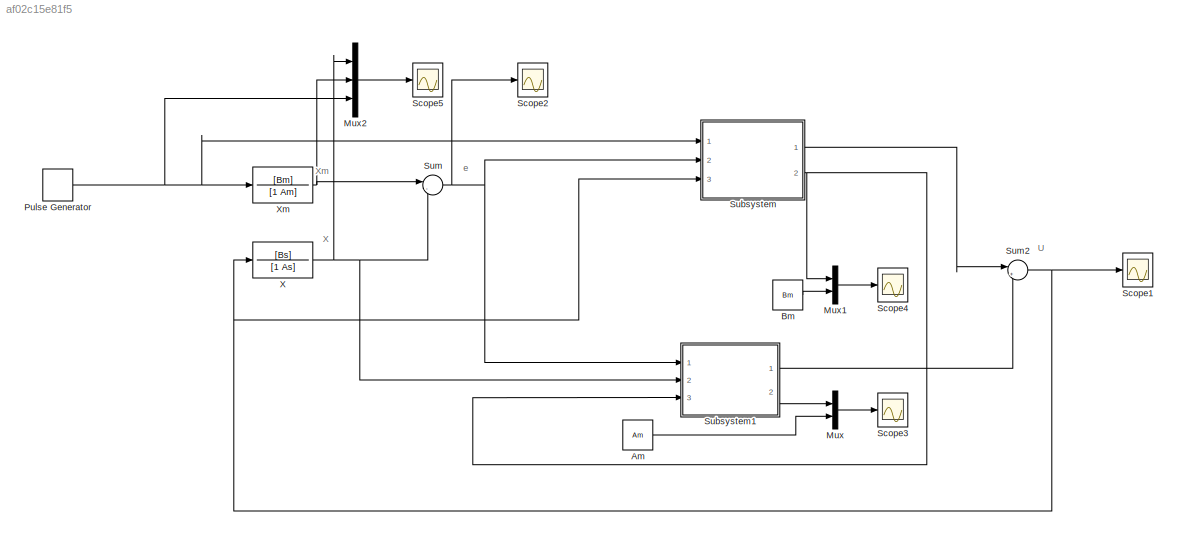
MODEL slx_af02c15e81f5
KIND model
CONFIG AbsTol = auto
CONFIG FixedStep = auto
CONFIG MaxStep = auto
CONFIG MinStep = auto
CONFIG RelTol = 1e-3
CONFIG SampleTimeConstraint = Unconstrained
CONFIG Solver = ode45
CONFIG SolverMode = SingleTasking
CONFIG SolverName = ode45
CONFIG StartTime = 0.0
CONFIG StopTime = 35
BLOCK [Constant] Am 
  Value = Am
BLOCK [Constant] Bm
  Value = Bm
BLOCK [Mux] Mux
  DisplayOption = bar
  Inputs = 2
  Ports = [2, 1]
BLOCK [Mux] Mux1
  DisplayOption = bar
  Inputs = 2
  Ports = [2, 1]
BLOCK [Mux] Mux2
  DisplayOption = bar
  Inputs = 3
  Ports = [3, 1]
BLOCK [DiscretePulseGenerator] Pulse Generator
  Period = 20
  Ports = [0, 1]
  PulseType = Time based
  PulseWidth = 50
BLOCK [Scope] Scope1
  Ports = [1]
  ScopeSpecificationString = Simulink.scopes.TimeScopeBlockCfg('CurrentConfiguration', extmgr.ConfigurationSet(extmgr.Configuration('Core','General UI',true,'FigureColor',[1 1 1]),extmgr.Configuration('Core','Source UI',true),extmgr.Configuration('Sources','WiredSimulink',true,'DataLoggingVariableName','ScopeData1','DataLoggingSaveFormat','StructureWithTime','DataLoggingDecimation','1','DataLoggingDecimateData',true),extmgr.C...<+2847ch>
BLOCK [Scope] Scope2
  Ports = [1]
  ScopeSpecificationString = Simulink.scopes.TimeScopeBlockCfg('CurrentConfiguration', extmgr.ConfigurationSet(extmgr.Configuration('Core','General UI',true,'FigureColor',[1 1 1]),extmgr.Configuration('Core','Source UI',true),extmgr.Configuration('Sources','WiredSimulink',true,'DataLoggingSaveFormat','StructureWithTime','DataLoggingDecimation','1','DataLoggingDecimateData',true),extmgr.Configuration('Visuals','Time Domain',tr...<+2807ch>
BLOCK [Scope] Scope3
  Ports = [1]
  ScopeSpecificationString = C++SS(StrPVP('Location','[548, 60, 1356, 480]'),StrPVP('Open','off'),StrPVP('ZoomMode','yonly'),MxPVP('AxesTitles',24,'struct(''axes1'',''%<SignalLabel>'')'),MxPVP('ScopeGraphics',28,'struct(''FigureColor'',''[1 1 1]'',''AxesColor'',''[1 1 1]'',''AxesTickColor'',''[0 0 0]'',''LineColors'',''[0 0 1;1 0 1;0 1 1;1 0 0;0 1 0;0 0 1]'',''LineStyles'',''-|-|-|-|-|-'',''LineWidths'',''[1 0.5 0.5 0.5 0.5 0...<+331ch>
BLOCK [Scope] Scope4
  Ports = [1]
  ScopeSpecificationString = Simulink.scopes.TimeScopeBlockCfg('CurrentConfiguration', extmgr.ConfigurationSet(extmgr.Configuration('Core','General UI',true,'FigureColor',[1 1 1]),extmgr.Configuration('Core','Source UI',true),extmgr.Configuration('Sources','WiredSimulink',true,'DataLoggingVariableName','ScopeData3','DataLoggingSaveFormat','StructureWithTime','DataLoggingDecimation','1','DataLoggingDecimateData',true),extmgr.C...<+2788ch>
BLOCK [Scope] Scope5
  Ports = [1]
  ScopeSpecificationString = Simulink.scopes.TimeScopeBlockCfg('CurrentConfiguration', extmgr.ConfigurationSet(extmgr.Configuration('Core','General UI',true,'FigureColor',[1 1 1]),extmgr.Configuration('Core','Source UI',true),extmgr.Configuration('Sources','WiredSimulink',true,'DataLoggingVariableName','ScopeData4','DataLoggingSaveFormat','StructureWithTime','DataLoggingDecimation','1','DataLoggingDecimateData',true),extmgr.C...<+2939ch>
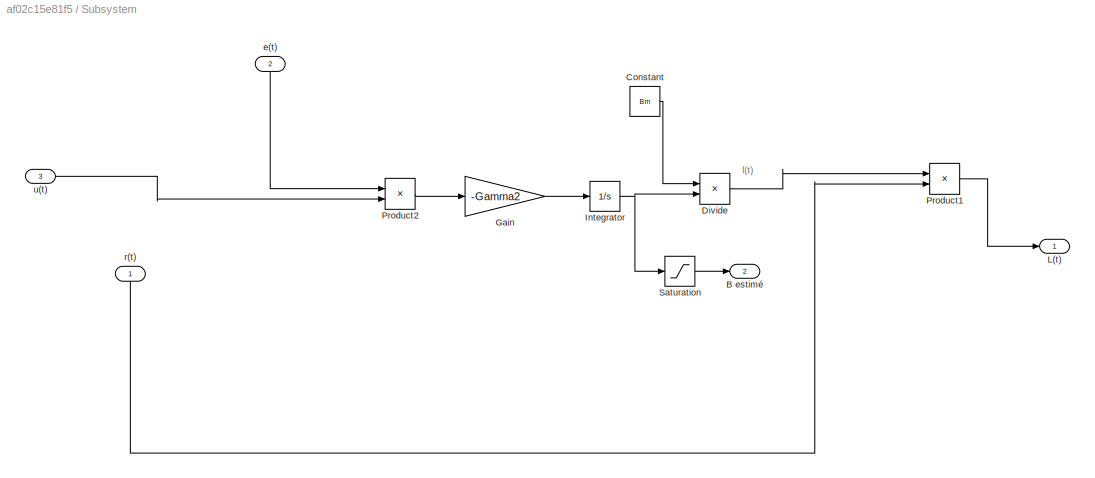
BLOCK [SubSystem] Subsystem
  Ports = [3, 2]
  RequestExecContextInheritance = off
  Variant = off
BLOCK [Outport] Subsystem/B estimé
  IconDisplay = Port number
  Port = 2
BLOCK [Constant] Subsystem/Constant
  Value = Bm
BLOCK [Product] Subsystem/Divide
  InputSameDT = off
  Inputs = */
  OutDataTypeStr = Inherit: Inherit via internal rule
  Ports = [2, 1]
  RndMeth = Floor
  SaturateOnIntegerOverflow = off
BLOCK [Gain] Subsystem/Gain
  Gain = -Gamma2
  OutDataTypeStr = Inherit: Inherit via internal rule
  ParamDataTypeStr = Inherit: Inherit via internal rule
  SaturateOnIntegerOverflow = off
BLOCK [Integrator] Subsystem/Integrator
  InitialCondition = 5
  Ports = [1, 1]
BLOCK [Outport] Subsystem/L(t)
  IconDisplay = Port number
BLOCK [Product] Subsystem/Product1
  InputSameDT = off
  OutDataTypeStr = Inherit: Inherit via internal rule
  Ports = [2, 1]
  RndMeth = Floor
  SaturateOnIntegerOverflow = off
BLOCK [Product] Subsystem/Product2
  InputSameDT = off
  OutDataTypeStr = Inherit: Inherit via internal rule
  Ports = [2, 1]
  RndMeth = Floor
  SaturateOnIntegerOverflow = off
BLOCK [Saturate] Subsystem/Saturation
  InputPortMap = u0
  LowerLimit = 0.1
  Ports = [1, 1]
  UpperLimit = inf
BLOCK [Inport] Subsystem/e(t)
  IconDisplay = Port number
  Port = 2
BLOCK [Inport] Subsystem/r(t)
  IconDisplay = Port number
BLOCK [Inport] Subsystem/u(t)
  IconDisplay = Port number
  Port = 3
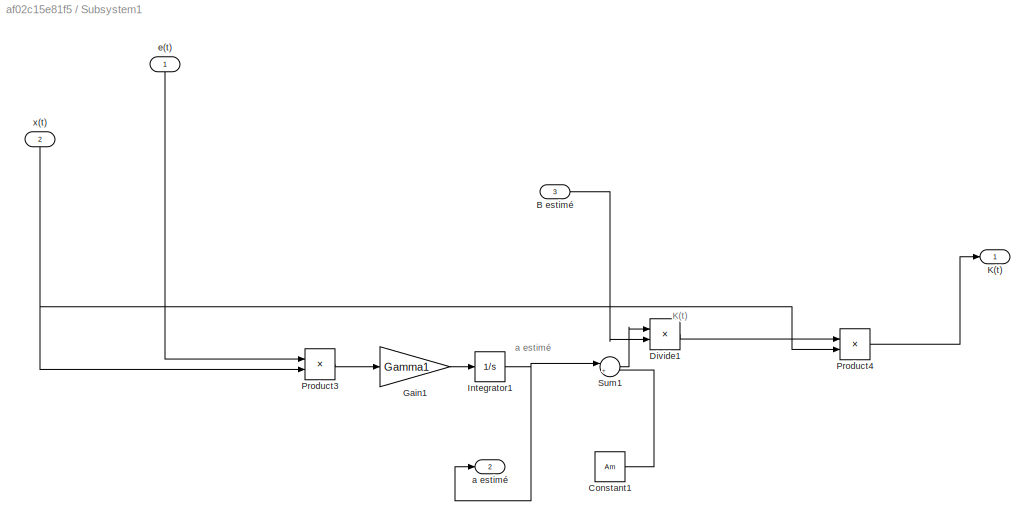
BLOCK [SubSystem] Subsystem1
  Ports = [3, 2]
  RequestExecContextInheritance = off
  Variant = off
BLOCK [Inport] Subsystem1/B estimé
  IconDisplay = Port number
  Port = 3
BLOCK [Constant] Subsystem1/Constant1
  Value = Am
BLOCK [Product] Subsystem1/Divide1
  InputSameDT = off
  Inputs = */
  OutDataTypeStr = Inherit: Inherit via internal rule
  Ports = [2, 1]
  RndMeth = Floor
  SaturateOnIntegerOverflow = off
BLOCK [Gain] Subsystem1/Gain1
  Gain = Gamma1
  OutDataTypeStr = Inherit: Inherit via internal rule
  ParamDataTypeStr = Inherit: Inherit via internal rule
  SaturateOnIntegerOverflow = off
BLOCK [Integrator] Subsystem1/Integrator1
  InitialCondition = 5
  Ports = [1, 1]
BLOCK [Outport] Subsystem1/K(t)
  IconDisplay = Port number
BLOCK [Product] Subsystem1/Product3
  InputSameDT = off
  OutDataTypeStr = Inherit: Inherit via internal rule
  Ports = [2, 1]
  RndMeth = Floor
  SaturateOnIntegerOverflow = off
BLOCK [Product] Subsystem1/Product4
  InputSameDT = off
  OutDataTypeStr = Inherit: Inherit via internal rule
  Ports = [2, 1]
  RndMeth = Floor
  SaturateOnIntegerOverflow = off
BLOCK [Sum] Subsystem1/Sum1
  IconShape = round
  InputSameDT = off
  Inputs = |++
  OutDataTypeStr = Inherit: Inherit via internal rule
  Ports = [2, 1]
  SaturateOnIntegerOverflow = off
BLOCK [Outport] Subsystem1/a estimé
  IconDisplay = Port number
  Port = 2
BLOCK [Inport] Subsystem1/e(t)
  IconDisplay = Port number
BLOCK [Inport] Subsystem1/x(t)
  IconDisplay = Port number
  Port = 2
BLOCK [Sum] Sum
  IconShape = round
  InputSameDT = off
  Inputs = |-+
  OutDataTypeStr = Inherit: Inherit via internal rule
  Ports = [2, 1]
  SaturateOnIntegerOverflow = off
BLOCK [Sum] Sum2
  IconShape = round
  InputSameDT = off
  Inputs = |+-
  OutDataTypeStr = Inherit: Inherit via internal rule
  Ports = [2, 1]
  SaturateOnIntegerOverflow = off
BLOCK [TransferFcn] X
  Denominator = [1 As]
  Numerator = [Bs]
BLOCK [TransferFcn] Xm
  Denominator = [1 Am]
  Numerator = [Bm]
ANNOTATION (root): U
ANNOTATION (root): X
ANNOTATION (root): Xm
ANNOTATION (root): e
ANNOTATION Subsystem: l(t)
ANNOTATION Subsystem1: K(t)
ANNOTATION Subsystem1: a estimé
LINE Am :1 -> Mux:2
LINE Bm:1 -> Mux1:2
LINE Mux1:1 -> Scope4:1
LINE Mux2:1 -> Scope5:1
LINE Mux:1 -> Scope3:1
NET Pulse Generator:1 -> Mux2:3, Subsystem:1, Xm:1
LINE Subsystem/Constant:1 -> Subsystem/Divide:1
LINE Subsystem/Divide:1 -> Subsystem/Product1:1
LINE Subsystem/Gain:1 -> Subsystem/Integrator:1
NET Subsystem/Integrator:1 -> Subsystem/Divide:2, Subsystem/Saturation:1
LINE Subsystem/Product1:1 -> Subsystem/L(t):1
LINE Subsystem/Product2:1 -> Subsystem/Gain:1
LINE Subsystem/Saturation:1 -> Subsystem/B estimé:1
LINE Subsystem/e(t):1 -> Subsystem/Product2:1
LINE Subsystem/r(t):1 -> Subsystem/Product1:2
LINE Subsystem/u(t):1 -> Subsystem/Product2:2
LINE Subsystem1/B estimé:1 -> Subsystem1/Divide1:2
LINE Subsystem1/Constant1:1 -> Subsystem1/Sum1:2
LINE Subsystem1/Divide1:1 -> Subsystem1/Product4:1
LINE Subsystem1/Gain1:1 -> Subsystem1/Integrator1:1
NET Subsystem1/Integrator1:1 -> Subsystem1/Sum1:1, Subsystem1/a estimé:1
LINE Subsystem1/Product3:1 -> Subsystem1/Gain1:1
LINE Subsystem1/Product4:1 -> Subsystem1/K(t):1
LINE Subsystem1/Sum1:1 -> Subsystem1/Divide1:1
LINE Subsystem1/e(t):1 -> Subsystem1/Product3:1
NET Subsystem1/x(t):1 -> Subsystem1/Product3:2, Subsystem1/Product4:2
LINE Subsystem1:1 -> Sum2:2
LINE Subsystem1:2 -> Mux:1
LINE Subsystem:1 -> Sum2:1
NET Subsystem:2 -> Mux1:1, Subsystem1:3
NET Sum2:1 -> Scope1:1, Subsystem:3, X:1
NET Sum:1 -> Scope2:1, Subsystem1:1, Subsystem:2
NET X:1 -> Mux2:1, Subsystem1:2, Sum:2
NET Xm:1 -> Mux2:2, Sum:1
note: NET lines group one-source signal fan-out (src -> all destinations, sorted); 1:1 wires keep LINE
